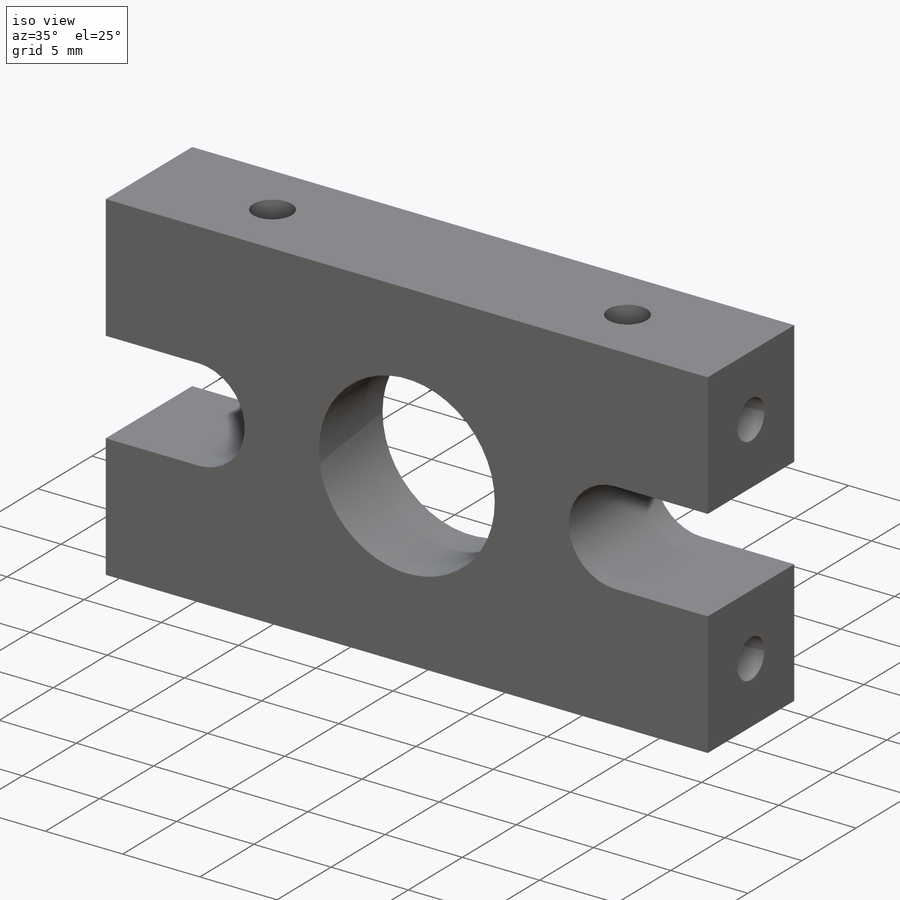
[diagram: iso view]
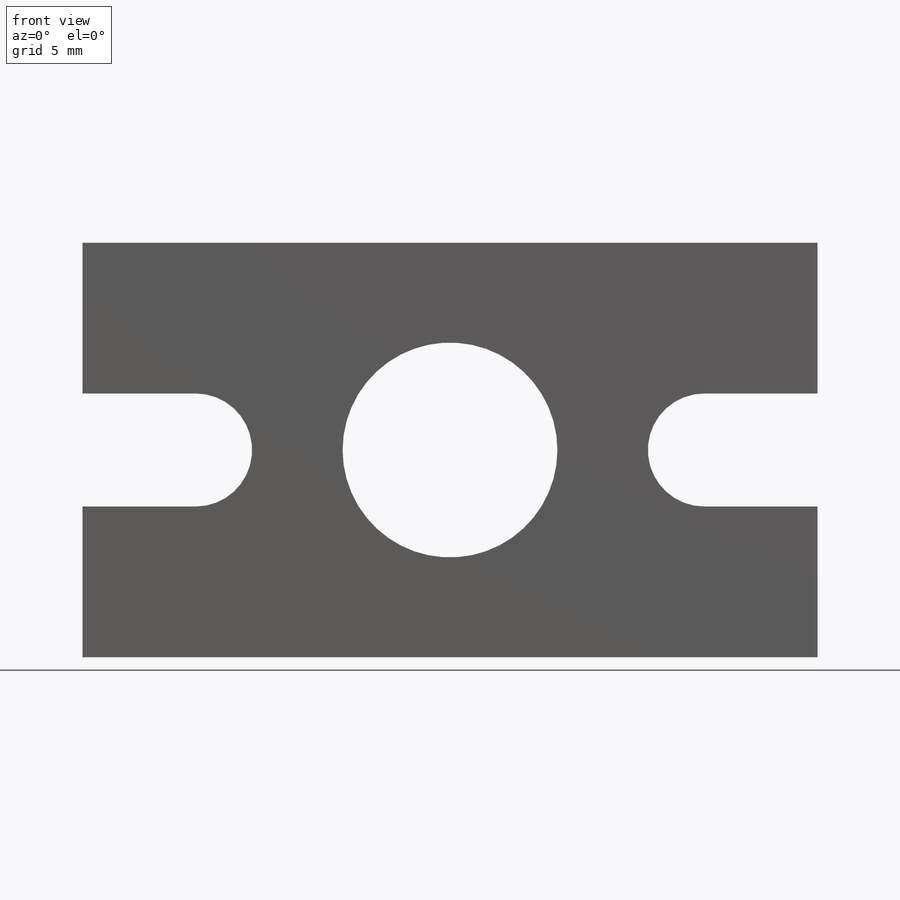
[diagram: front view]
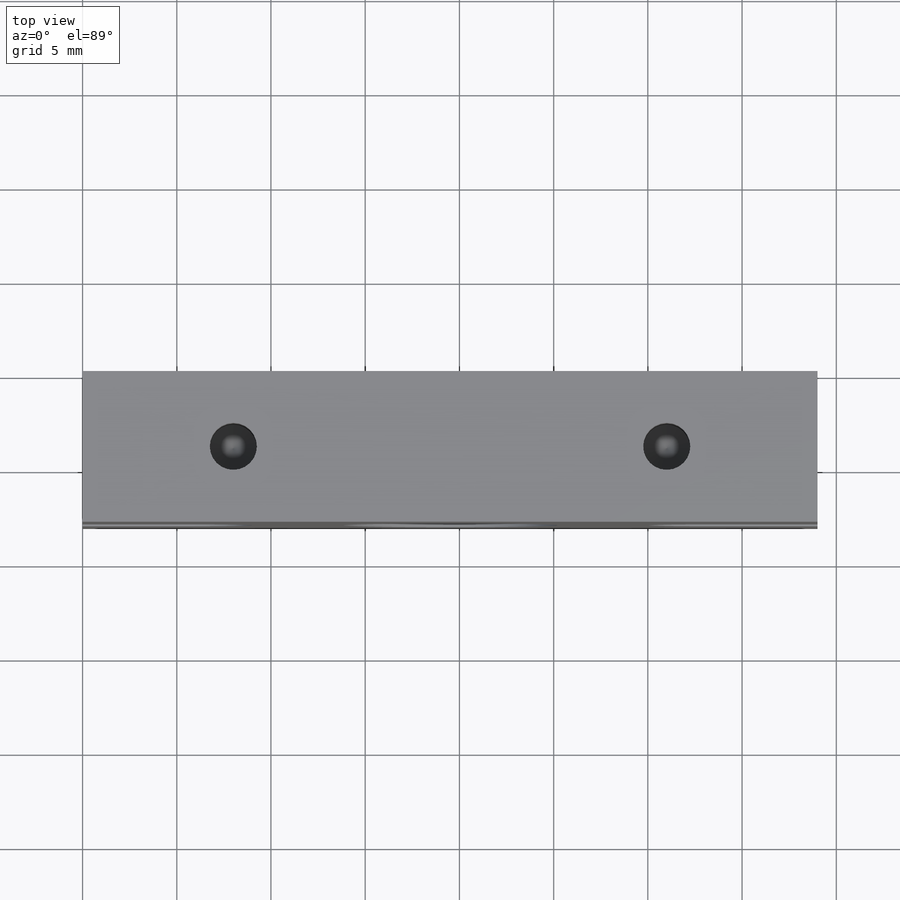
[diagram: top view]
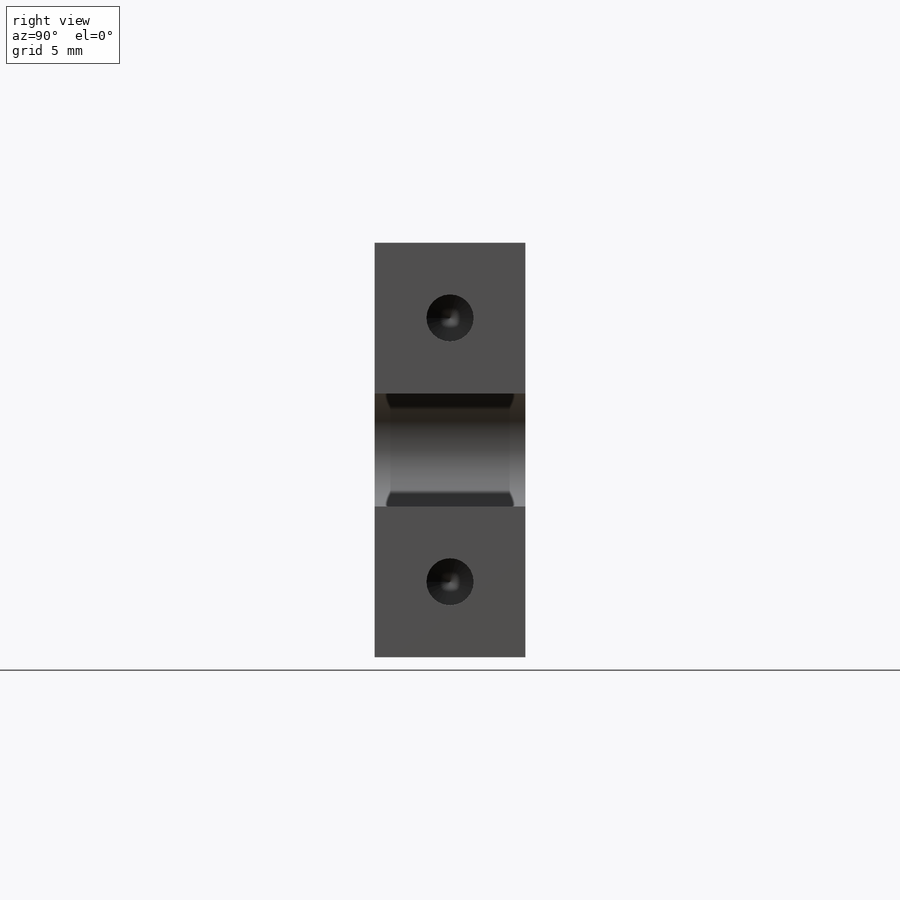
[diagram: right view]
SOLIDWORKS PART (.sldprt)
format: sldprt  version: not decoded by parser v0  size: 288,256 bytes
history: native  units: mm
features: sketch x8, hole x3, material x1, extrude x1, cut_extrude x1 (+11 scaffold rows collapsed)
feature tree (25):
  scaffold x11  (default folders/planes/origin — collapsed)
  material  "Material <not specified>"
  sketch  "Sketch1"  dims[D1=11.4mm D6=3.0mm D2=39.0mm D3=22.0mm D4=11.0mm D5=19.5mm D7=6.0mm]
  extrude  "Boss-Extrude1"  Depth=8mm
  hole  "Tap Drill for M3x0.5 Tap1"  Diameter=2.5mm Depth=5mm
  sketch  "Sketch3"  dims[D1=4.0mm D2=4.0mm D3=4.0mm]
  sketch  "Sketch2"  dims[hole-wizard template sketch: 50 standard entries collapsed; hole parameters above]
  hole  "Tap Drill for M3x0.5 Tap2"  Diameter=2.5mm Depth=5mm
  sketch  "Sketch5"  dims[D1=4.0mm D2=4.0mm D3=4.0mm]
  sketch  "Sketch4"  dims[hole-wizard template sketch: 50 standard entries collapsed; hole parameters above]
  hole  "Tap Drill for M3x0.5 Tap3"  Diameter=2.5mm Depth=5mm
  sketch  "Sketch7"  dims[D1=8.0mm D2=4.0mm D3=8.0mm]
  sketch  "Sketch6"  dims[hole-wizard template sketch: 50 standard entries collapsed; hole parameters above]
  sketch  "Sketch8"  dims[D1=16.0mm]
  cut_extrude  "Cut-Extrude1"  Depth=2.1mm
decode coverage: 13 of 13 modeling features carry decoded parameters
note: ~ marks probable driven/reference dimensions
note: suppression state not decoded; provenance and decode notes live in map.json
